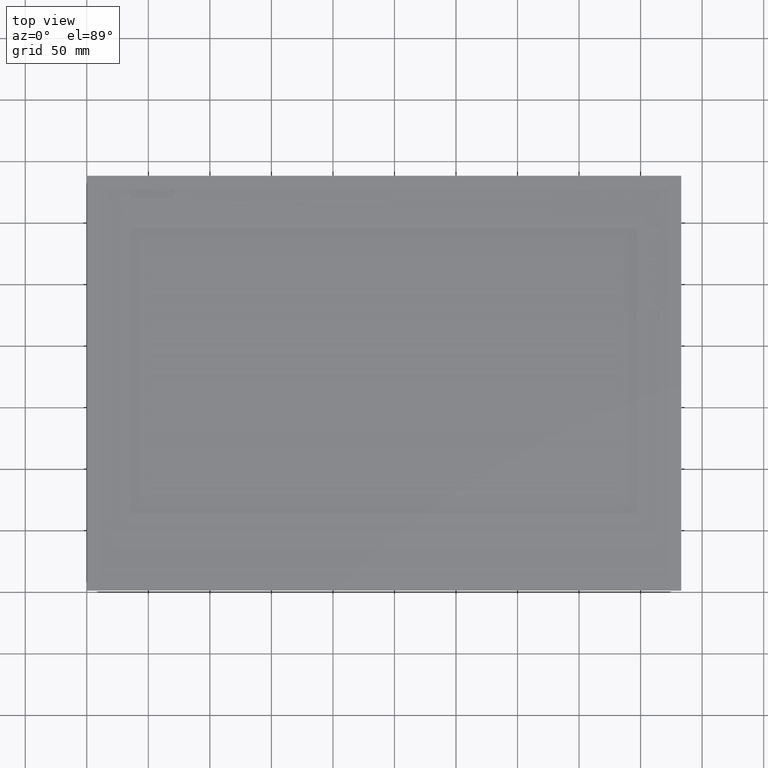
[diagram: clean part render]
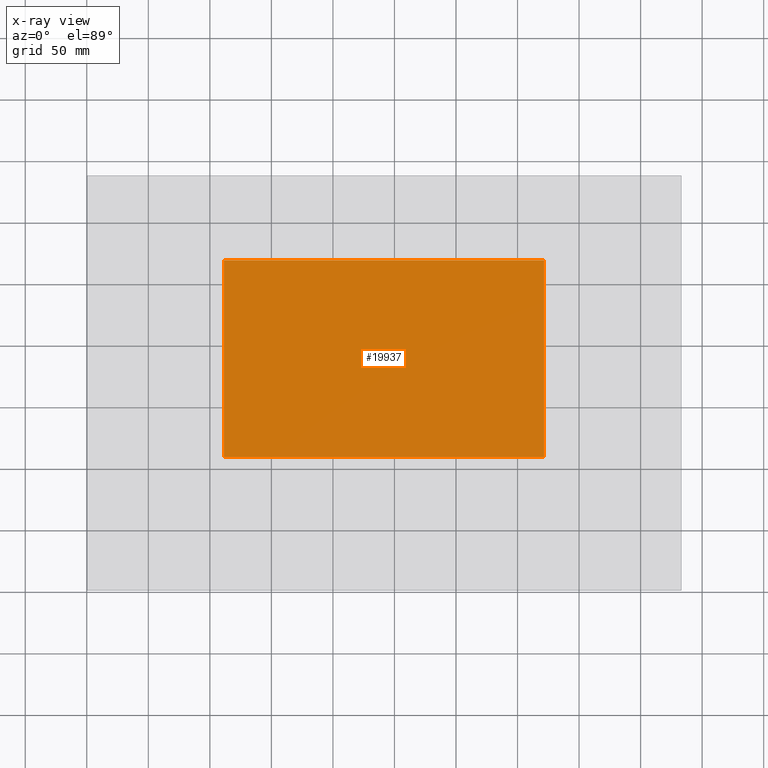
[diagram: x-ray — body ghosted, one internal face saturated and labeled with its STEP entity id]
A machine part, top view, then the same camera in x-ray: the body is ghosted and one INTERNAL B-rep face — a face not visible from any outside direction — is saturated and labeled: STEP entity #19937.
In plain terms, the highlighted planar face has unit normal (0, 0, 1).
Its self-contained STEP definition (entity closure, byte-faithful):
#4830=LINE('',#68437,#10168);
#4833=LINE('',#68443,#10171);
#4836=LINE('',#68449,#10174);
#4839=LINE('',#68454,#10177);
#10168=VECTOR('',#56588,1.);
#10171=VECTOR('',#56593,1.);
#10174=VECTOR('',#56598,1.);
#10177=VECTOR('',#56603,1.);
#15114=FACE_OUTER_BOUND('',#23652,.T.);
#17492=PLANE('',#51546);
#19937=ADVANCED_FACE('',(#15114),#17492,.F.);
#23652=EDGE_LOOP('',(#29066,#29067,#29068,#29069));
#29066=ORIENTED_EDGE('',*,*,#45117,.F.);
#29067=ORIENTED_EDGE('',*,*,#45126,.F.);
#29068=ORIENTED_EDGE('',*,*,#45123,.F.);
#29069=ORIENTED_EDGE('',*,*,#45120,.F.);
#40210=VERTEX_POINT('',#68436);
#40211=VERTEX_POINT('',#68438);
#40213=VERTEX_POINT('',#68444);
#40215=VERTEX_POINT('',#68450);
#45117=EDGE_CURVE('',#40210,#40211,#4830,.T.);
#45120=EDGE_CURVE('',#40211,#40213,#4833,.T.);
#45123=EDGE_CURVE('',#40213,#40215,#4836,.T.);
#45126=EDGE_CURVE('',#40215,#40210,#4839,.T.);
#51546=AXIS2_PLACEMENT_3D('',#68456,#56606,#56607);
#56588=DIRECTION('',(0.,-1.,0.));
#56593=DIRECTION('',(1.,0.,0.));
#56598=DIRECTION('',(0.,1.,0.));
#56603=DIRECTION('',(-1.,0.,0.));
#56606=DIRECTION('',(0.,0.,1.));
#56607=DIRECTION('',(1.,0.,0.));
#68436=CARTESIAN_POINT('',(-130.,45.4,-37.5));
#68437=CARTESIAN_POINT('',(-130.,45.4,-37.5));
#68438=CARTESIAN_POINT('',(-130.,-114.6,-37.5));
#68443=CARTESIAN_POINT('',(-130.,-114.6,-37.5));
#68444=CARTESIAN_POINT('',(130.,-114.6,-37.5));
#68449=CARTESIAN_POINT('',(130.,-114.6,-37.5));
#68450=CARTESIAN_POINT('',(130.,45.4,-37.5));
#68454=CARTESIAN_POINT('',(130.,45.4,-37.5));
#68456=CARTESIAN_POINT('',(-130.,-114.6,-37.5));